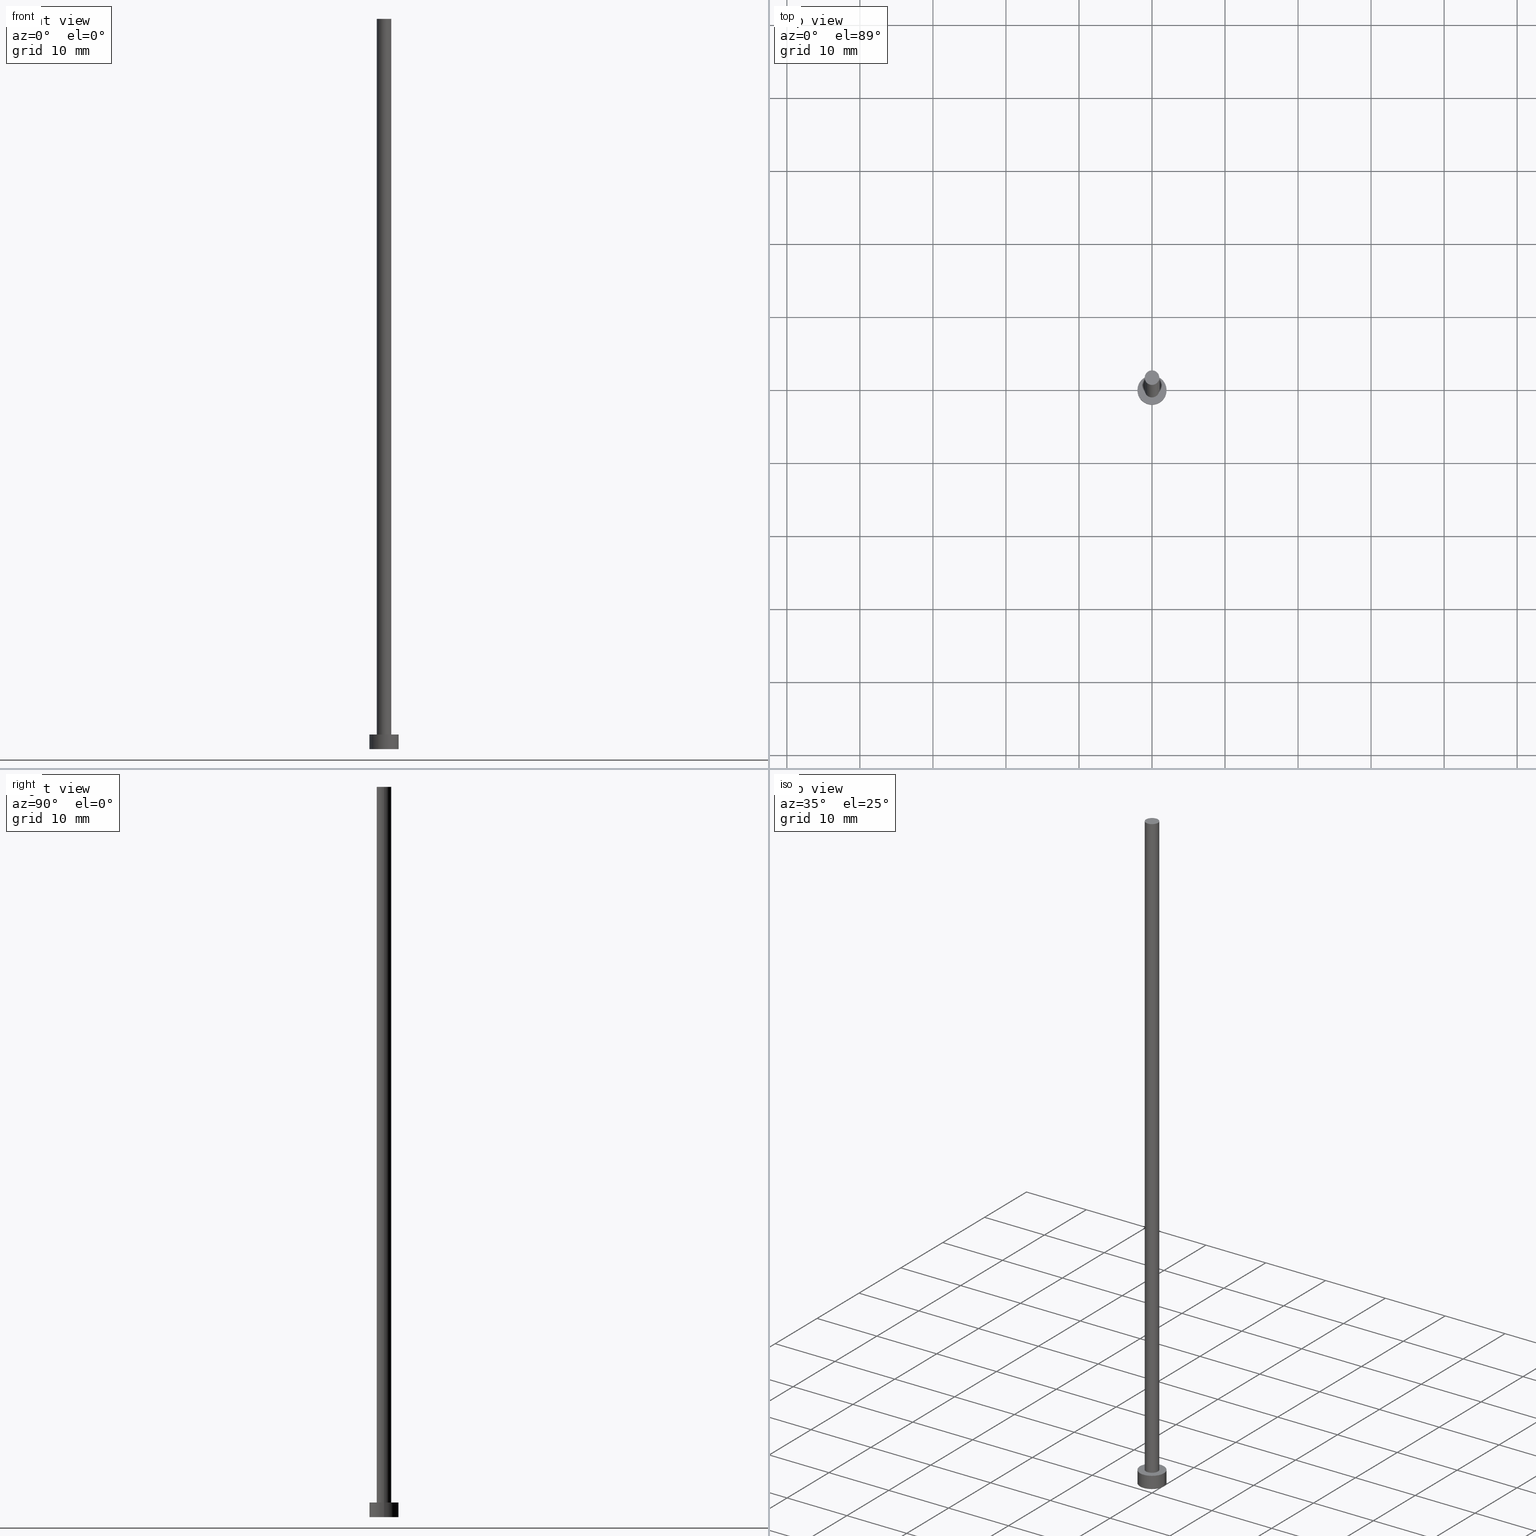
[diagram: canonical four-view strip — front | top / right | iso, engineering-drawing reading convention]
A machine part, canonical four-view strip (front | top / right | iso — engineering-drawing reading convention). The complete STEP part file that produces these views, byte-faithful:
ISO-10303-21;
HEADER;
FILE_DESCRIPTION (( 'STEP AP203' ),
    '1' );
FILE_NAME ('e36b.STEP',
    '2023-02-13T14:56:16',
    ( '' ),
    ( '' ),
    'SwSTEP 2.0',
    'SolidWorks 2019',
    '' );
FILE_SCHEMA (( 'CONFIG_CONTROL_DESIGN' ));
ENDSEC;

DATA;
#1 = COORDINATED_UNIVERSAL_TIME_OFFSET ( 1, 0, .AHEAD. ) ;
#2 = AXIS2_PLACEMENT_3D ( 'NONE', #114, #188, #10 ) ;
#3 = VECTOR ( 'NONE', #117, 1000.000000000000000 ) ;
#4 = EDGE_CURVE ( 'NONE', #66, #193, #75, .T. ) ;
#5 = EDGE_CURVE ( 'NONE', #150, #34, #24, .T. ) ;
#6 = CYLINDRICAL_SURFACE ( 'NONE', #13, 1.000000000000000000 ) ;
#7 = PERSON ( 'NEUR�EN�', 'NEUR�EN�', 'NEUR�EN�', ('NEUR�EN�'), ('NEUR�EN�'), ('NEUR�EN�') ) ;
#8 = ORIENTED_EDGE ( 'NONE', *, *, #248, .T. ) ;
#9 = PERSON_AND_ORGANIZATION ( #7, #104 ) ;
#10 = DIRECTION ( 'NONE',  ( 1.000000000000000000, 0.000000000000000000, 0.000000000000000000 ) ) ;
#11 = ORIENTED_EDGE ( 'NONE', *, *, #214, .F. ) ;
#12 = FACE_BOUND ( 'NONE', #62, .T. ) ;
#13 = AXIS2_PLACEMENT_3D ( 'NONE', #86, #242, #33 ) ;
#14 = EDGE_LOOP ( 'NONE', ( #244, #8 ) ) ;
#15 = CARTESIAN_POINT ( 'NONE',  ( 0.000000000000000000, 0.000000000000000000, 2.000000000000000000 ) ) ;
#16 = FACE_OUTER_BOUND ( 'NONE', #132, .T. ) ;
#17 = ORIENTED_EDGE ( 'NONE', *, *, #105, .T. ) ;
#18 = FACE_OUTER_BOUND ( 'NONE', #81, .T. ) ;
#19 = CALENDAR_DATE ( 2023, 13, 2 ) ;
#20 = PLANE ( 'NONE',  #61 ) ;
#21 = PERSON_AND_ORGANIZATION ( #7, #104 ) ;
#22 = DIRECTION ( 'NONE',  ( 0.000000000000000000, 0.000000000000000000, 1.000000000000000000 ) ) ;
#23 = ADVANCED_FACE ( 'NONE', ( #65 ), #6, .T. ) ;
#24 = CIRCLE ( 'NONE', #221, 2.000000000000000000 ) ;
#25 = LOCAL_TIME ( 15, 56, 16.00000000000000000, #32 ) ;
#26 = PRODUCT_DEFINITION_SHAPE ( 'NONE', 'NONE',  #89 ) ;
#27 = EDGE_CURVE ( 'NONE', #144, #118, #218, .T. ) ;
#28 = VECTOR ( 'NONE', #168, 1000.000000000000000 ) ;
#29 = ORIENTED_EDGE ( 'NONE', *, *, #243, .T. ) ;
#30 = CIRCLE ( 'NONE', #179, 2.000000000000000000 ) ;
#31 = ORIENTED_EDGE ( 'NONE', *, *, #224, .T. ) ;
#32 = COORDINATED_UNIVERSAL_TIME_OFFSET ( 1, 0, .AHEAD. ) ;
#33 = DIRECTION ( 'NONE',  ( -1.000000000000000000, 0.000000000000000000, 0.000000000000000000 ) ) ;
#34 = VERTEX_POINT ( 'NONE', #63 ) ;
#35 = CARTESIAN_POINT ( 'NONE',  ( 0.000000000000000000, 0.000000000000000000, 0.000000000000000000 ) ) ;
#36 = MECHANICAL_CONTEXT ( 'NONE', #46, 'mechanical' ) ;
#37 = FACE_OUTER_BOUND ( 'NONE', #165, .T. ) ;
#38 = CARTESIAN_POINT ( 'NONE',  ( 2.000000000000000000, 2.449293598294706414E-16, 0.000000000000000000 ) ) ;
#39 = SECURITY_CLASSIFICATION_LEVEL ( 'unclassified' ) ;
#40 = DIRECTION ( 'NONE',  ( -0.000000000000000000, -0.000000000000000000, -1.000000000000000000 ) ) ;
#41 = PERSON_AND_ORGANIZATION ( #7, #104 ) ;
#42 = PERSON_AND_ORGANIZATION_ROLE ( 'design_supplier' ) ;
#43 = EDGE_LOOP ( 'NONE', ( #236, #213, #250, #134 ) ) ;
#44 = CC_DESIGN_SECURITY_CLASSIFICATION ( #157, ( #121 ) ) ;
#45 = CC_DESIGN_PERSON_AND_ORGANIZATION_ASSIGNMENT ( #41, #42, ( #121 ) ) ;
#46 = APPLICATION_CONTEXT ( 'configuration controlled 3d designs of mechanical parts and assemblies' ) ;
#47 = ORIENTED_EDGE ( 'NONE', *, *, #243, .F. ) ;
#48 = DIRECTION ( 'NONE',  ( 0.000000000000000000, 0.000000000000000000, 1.000000000000000000 ) ) ;
#49 = CC_DESIGN_APPROVAL ( #197, ( #157 ) ) ;
#50 = ORIENTED_EDGE ( 'NONE', *, *, #105, .F. ) ;
#51 = DIRECTION ( 'NONE',  ( -1.000000000000000000, 0.000000000000000000, 0.000000000000000000 ) ) ;
#52 =( NAMED_UNIT ( * ) PLANE_ANGLE_UNIT ( ) SI_UNIT ( $, .RADIAN. ) );
#53 = CARTESIAN_POINT ( 'NONE',  ( 0.000000000000000000, 0.000000000000000000, 100.0000000000000000 ) ) ;
#54 = DIRECTION ( 'NONE',  ( 1.000000000000000000, 0.000000000000000000, -0.000000000000000000 ) ) ;
#55 = ADVANCED_FACE ( 'NONE', ( #149 ), #127, .T. ) ;
#56 = APPLICATION_PROTOCOL_DEFINITION ( 'international standard', 'config_control_design', 1994, #46 ) ;
#57 = CARTESIAN_POINT ( 'NONE',  ( 2.000000000000000000, 2.449293598294706414E-16, 2.000000000000000000 ) ) ;
#58 = APPROVAL_DATE_TIME ( #183, #166 ) ;
#59 = ORIENTED_EDGE ( 'NONE', *, *, #173, .F. ) ;
#60 = APPROVAL_DATE_TIME ( #123, #197 ) ;
#61 = AXIS2_PLACEMENT_3D ( 'NONE', #232, #138, #235 ) ;
#62 = EDGE_LOOP ( 'NONE', ( #131, #47 ) ) ;
#63 = CARTESIAN_POINT ( 'NONE',  ( 2.000000000000000000, 2.449293598294706414E-16, 2.000000000000000000 ) ) ;
#64 = CIRCLE ( 'NONE', #241, 2.000000000000000000 ) ;
#65 = FACE_OUTER_BOUND ( 'NONE', #90, .T. ) ;
#66 = VERTEX_POINT ( 'NONE', #156 ) ;
#67 = DIRECTION ( 'NONE',  ( 0.000000000000000000, 0.000000000000000000, 1.000000000000000000 ) ) ;
#68 = AXIS2_PLACEMENT_3D ( 'NONE', #253, #135, #152 ) ;
#69 = CLOSED_SHELL ( 'NONE', ( #23, #55, #204, #82, #106, #158, #233 ) ) ;
#70 = ORIENTED_EDGE ( 'NONE', *, *, #145, .F. ) ;
#71 = CARTESIAN_POINT ( 'NONE',  ( 0.000000000000000000, 0.000000000000000000, 2.000000000000000000 ) ) ;
#72 =( LENGTH_UNIT ( ) NAMED_UNIT ( * ) SI_UNIT ( .MILLI., .METRE. ) );
#73 = DIRECTION ( 'NONE',  ( 0.000000000000000000, 0.000000000000000000, 1.000000000000000000 ) ) ;
#74 = CARTESIAN_POINT ( 'NONE',  ( 1.000000000000000000, 1.224646799147353207E-16, 100.0000000000000000 ) ) ;
#75 = CIRCLE ( 'NONE', #225, 1.000000000000000000 ) ;
#76 = ORIENTED_EDGE ( 'NONE', *, *, #224, .F. ) ;
#77 = APPROVAL_STATUS ( 'not_yet_approved' ) ;
#78 = CARTESIAN_POINT ( 'NONE',  ( -2.000000000000000000, 0.000000000000000000, 2.000000000000000000 ) ) ;
#79 = CC_DESIGN_PERSON_AND_ORGANIZATION_ASSIGNMENT ( #199, #215, ( #121 ) ) ;
#80 = COORDINATED_UNIVERSAL_TIME_OFFSET ( 1, 0, .AHEAD. ) ;
#81 = EDGE_LOOP ( 'NONE', ( #11, #88, #31, #167 ) ) ;
#82 = ADVANCED_FACE ( 'NONE', ( #12, #124 ), #178, .T. ) ;
#83 = CALENDAR_DATE ( 2023, 13, 2 ) ;
#84 = DIRECTION ( 'NONE',  ( 0.000000000000000000, 0.000000000000000000, 1.000000000000000000 ) ) ;
#85 = UNCERTAINTY_MEASURE_WITH_UNIT (LENGTH_MEASURE( 1.000000000000000082E-05 ), #72, 'distance_accuracy_value', 'NONE');
#86 = CARTESIAN_POINT ( 'NONE',  ( 0.000000000000000000, 0.000000000000000000, 100.0000000000000000 ) ) ;
#87 = LOCAL_TIME ( 15, 56, 16.00000000000000000, #125 ) ;
#88 = ORIENTED_EDGE ( 'NONE', *, *, #96, .F. ) ;
#89 = PRODUCT_DEFINITION ( 'NEZN�M�', '', #121, #220 ) ;
#90 = EDGE_LOOP ( 'NONE', ( #70, #227, #29, #76 ) ) ;
#91 = CARTESIAN_POINT ( 'NONE',  ( 0.000000000000000000, 0.000000000000000000, 0.000000000000000000 ) ) ;
#92 = AXIS2_PLACEMENT_3D ( 'NONE', #15, #67, #141 ) ;
#93 = ORIENTED_EDGE ( 'NONE', *, *, #96, .T. ) ;
#94 = AXIS2_PLACEMENT_3D ( 'NONE', #245, #22, #163 ) ;
#95 = DIRECTION ( 'NONE',  ( -0.000000000000000000, -0.000000000000000000, -1.000000000000000000 ) ) ;
#96 = EDGE_CURVE ( 'NONE', #191, #169, #252, .T. ) ;
#97 = CARTESIAN_POINT ( 'NONE',  ( -2.000000000000000000, 0.000000000000000000, 2.000000000000000000 ) ) ;
#98 = APPLICATION_PROTOCOL_DEFINITION ( 'international standard', 'config_control_design', 1994, #136 ) ;
#99 = LINE ( 'NONE', #78, #247 ) ;
#100 = VECTOR ( 'NONE', #95, 1000.000000000000000 ) ;
#101 = APPROVAL_ROLE ( '' ) ;
#102 = CALENDAR_DATE ( 2023, 13, 2 ) ;
#103 = DATE_AND_TIME ( #19, #226 ) ;
#104 = ORGANIZATION ( 'NEUR�EN�', 'NEUR�EN�', '' ) ;
#105 = EDGE_CURVE ( 'NONE', #118, #144, #30, .T. ) ;
#106 = ADVANCED_FACE ( 'NONE', ( #37 ), #249, .F. ) ;
#107 = PRODUCT ( 'e36b', 'e36b', '', ( #36 ) ) ;
#108 = CIRCLE ( 'NONE', #147, 1.000000000000000000 ) ;
#109 = AXIS2_PLACEMENT_3D ( 'NONE', #53, #153, #51 ) ;
#110 = ORIENTED_EDGE ( 'NONE', *, *, #145, .T. ) ;
#111 = ADVANCED_BREP_SHAPE_REPRESENTATION ( 'e36b', ( #251, #161 ), #130 ) ;
#112 = ORIENTED_EDGE ( 'NONE', *, *, #129, .T. ) ;
#113 = CALENDAR_DATE ( 2023, 13, 2 ) ;
#114 = CARTESIAN_POINT ( 'NONE',  ( 0.000000000000000000, 0.000000000000000000, 0.000000000000000000 ) ) ;
#115 = DIRECTION ( 'NONE',  ( 1.000000000000000000, 0.000000000000000000, 0.000000000000000000 ) ) ;
#116 = DIRECTION ( 'NONE',  ( -0.000000000000000000, -0.000000000000000000, -1.000000000000000000 ) ) ;
#117 = DIRECTION ( 'NONE',  ( -0.000000000000000000, -0.000000000000000000, -1.000000000000000000 ) ) ;
#118 = VERTEX_POINT ( 'NONE', #38 ) ;
#119 =( NAMED_UNIT ( * ) SI_UNIT ( $, .STERADIAN. ) SOLID_ANGLE_UNIT ( ) );
#120 = DIRECTION ( 'NONE',  ( 0.000000000000000000, 0.000000000000000000, 1.000000000000000000 ) ) ;
#121 = PRODUCT_DEFINITION_FORMATION_WITH_SPECIFIED_SOURCE ( 'LIBOVOLN�', '', #107, .NOT_KNOWN. ) ;
#122 = PERSON_AND_ORGANIZATION ( #7, #104 ) ;
#123 = DATE_AND_TIME ( #83, #254 ) ;
#124 = FACE_OUTER_BOUND ( 'NONE', #14, .T. ) ;
#125 = COORDINATED_UNIVERSAL_TIME_OFFSET ( 1, 0, .AHEAD. ) ;
#126 = PERSON_AND_ORGANIZATION_ROLE ( 'classification_officer' ) ;
#127 = CYLINDRICAL_SURFACE ( 'NONE', #234, 2.000000000000000000 ) ;
#128 = CC_DESIGN_DATE_AND_TIME_ASSIGNMENT ( #103, #219, ( #89 ) ) ;
#129 = EDGE_CURVE ( 'NONE', #34, #118, #212, .T. ) ;
#130 =( GEOMETRIC_REPRESENTATION_CONTEXT ( 3 ) GLOBAL_UNCERTAINTY_ASSIGNED_CONTEXT ( ( #85 ) ) GLOBAL_UNIT_ASSIGNED_CONTEXT ( ( #72, #52, #119 ) ) REPRESENTATION_CONTEXT ( 'NONE', 'WORKASPACE' ) );
#131 = ORIENTED_EDGE ( 'NONE', *, *, #4, .F. ) ;
#132 = EDGE_LOOP ( 'NONE', ( #93, #110 ) ) ;
#133 = DIRECTION ( 'NONE',  ( 0.000000000000000000, 0.000000000000000000, 1.000000000000000000 ) ) ;
#134 = ORIENTED_EDGE ( 'NONE', *, *, #27, .T. ) ;
#135 = DIRECTION ( 'NONE',  ( 0.000000000000000000, 0.000000000000000000, 1.000000000000000000 ) ) ;
#136 = APPLICATION_CONTEXT ( 'configuration controlled 3d designs of mechanical parts and assemblies' ) ;
#137 = LINE ( 'NONE', #192, #28 ) ;
#138 = DIRECTION ( 'NONE',  ( 0.000000000000000000, 0.000000000000000000, 1.000000000000000000 ) ) ;
#139 = CC_DESIGN_DATE_AND_TIME_ASSIGNMENT ( #255, #182, ( #157 ) ) ;
#140 = DIRECTION ( 'NONE',  ( 1.000000000000000000, 0.000000000000000000, 0.000000000000000000 ) ) ;
#141 = DIRECTION ( 'NONE',  ( 1.000000000000000000, 0.000000000000000000, -0.000000000000000000 ) ) ;
#142 = LOCAL_TIME ( 15, 56, 16.00000000000000000, #80 ) ;
#143 = FACE_OUTER_BOUND ( 'NONE', #43, .T. ) ;
#144 = VERTEX_POINT ( 'NONE', #171 ) ;
#145 = EDGE_CURVE ( 'NONE', #169, #191, #108, .T. ) ;
#146 = APPROVAL_DATE_TIME ( #187, #206 ) ;
#147 = AXIS2_PLACEMENT_3D ( 'NONE', #175, #48, #195 ) ;
#148 = PERSON_AND_ORGANIZATION ( #7, #104 ) ;
#149 = FACE_OUTER_BOUND ( 'NONE', #229, .T. ) ;
#150 = VERTEX_POINT ( 'NONE', #97 ) ;
#151 = PRODUCT_RELATED_PRODUCT_CATEGORY ( 'detail', '', ( #107 ) ) ;
#152 = DIRECTION ( 'NONE',  ( 1.000000000000000000, 0.000000000000000000, 0.000000000000000000 ) ) ;
#153 = DIRECTION ( 'NONE',  ( -0.000000000000000000, -0.000000000000000000, -1.000000000000000000 ) ) ;
#154 = DIRECTION ( 'NONE',  ( -1.000000000000000000, 0.000000000000000000, 0.000000000000000000 ) ) ;
#155 = APPROVAL_ROLE ( '' ) ;
#156 = CARTESIAN_POINT ( 'NONE',  ( -1.000000000000000000, 0.000000000000000000, 2.000000000000000000 ) ) ;
#157 = SECURITY_CLASSIFICATION ( '', '', #39 ) ;
#158 = ADVANCED_FACE ( 'NONE', ( #18 ), #177, .T. ) ;
#159 = PERSON_AND_ORGANIZATION_ROLE ( 'creator' ) ;
#160 = PERSON_AND_ORGANIZATION ( #7, #104 ) ;
#161 = AXIS2_PLACEMENT_3D ( 'NONE', #211, #170, #140 ) ;
#162 = DIRECTION ( 'NONE',  ( 1.000000000000000000, 0.000000000000000000, 0.000000000000000000 ) ) ;
#163 = DIRECTION ( 'NONE',  ( 1.000000000000000000, 0.000000000000000000, 0.000000000000000000 ) ) ;
#164 = DIRECTION ( 'NONE',  ( 0.000000000000000000, 0.000000000000000000, 1.000000000000000000 ) ) ;
#165 = EDGE_LOOP ( 'NONE', ( #172, #50 ) ) ;
#166 = APPROVAL ( #196, 'NEUR�EN�' ) ;
#167 = ORIENTED_EDGE ( 'NONE', *, *, #4, .T. ) ;
#168 = DIRECTION ( 'NONE',  ( -0.000000000000000000, -0.000000000000000000, -1.000000000000000000 ) ) ;
#169 = VERTEX_POINT ( 'NONE', #74 ) ;
#170 = DIRECTION ( 'NONE',  ( 0.000000000000000000, 0.000000000000000000, 1.000000000000000000 ) ) ;
#171 = CARTESIAN_POINT ( 'NONE',  ( -2.000000000000000000, 0.000000000000000000, 0.000000000000000000 ) ) ;
#172 = ORIENTED_EDGE ( 'NONE', *, *, #27, .F. ) ;
#173 = EDGE_CURVE ( 'NONE', #150, #144, #99, .T. ) ;
#174 = AXIS2_PLACEMENT_3D ( 'NONE', #71, #40, #154 ) ;
#175 = CARTESIAN_POINT ( 'NONE',  ( 0.000000000000000000, 0.000000000000000000, 100.0000000000000000 ) ) ;
#176 = ORIENTED_EDGE ( 'NONE', *, *, #248, .F. ) ;
#177 = CYLINDRICAL_SURFACE ( 'NONE', #109, 1.000000000000000000 ) ;
#178 = PLANE ( 'NONE',  #92 ) ;
#179 = AXIS2_PLACEMENT_3D ( 'NONE', #35, #73, #190 ) ;
#180 = PERSON_AND_ORGANIZATION ( #7, #104 ) ;
#181 = APPROVAL_PERSON_ORGANIZATION ( #160, #197, #240 ) ;
#182 = DATE_TIME_ROLE ( 'classification_date' ) ;
#183 = DATE_AND_TIME ( #239, #142 ) ;
#184 = CC_DESIGN_PERSON_AND_ORGANIZATION_ASSIGNMENT ( #148, #159, ( #89 ) ) ;
#185 = CC_DESIGN_APPROVAL ( #206, ( #89 ) ) ;
#186 = CARTESIAN_POINT ( 'NONE',  ( 0.000000000000000000, 0.000000000000000000, 2.000000000000000000 ) ) ;
#187 = DATE_AND_TIME ( #113, #25 ) ;
#188 = DIRECTION ( 'NONE',  ( 0.000000000000000000, 0.000000000000000000, 1.000000000000000000 ) ) ;
#189 = SHAPE_DEFINITION_REPRESENTATION ( #26, #111 ) ;
#190 = DIRECTION ( 'NONE',  ( 1.000000000000000000, 0.000000000000000000, 0.000000000000000000 ) ) ;
#191 = VERTEX_POINT ( 'NONE', #237 ) ;
#192 = CARTESIAN_POINT ( 'NONE',  ( 1.000000000000000000, 1.224646799147353207E-16, 100.0000000000000000 ) ) ;
#193 = VERTEX_POINT ( 'NONE', #231 ) ;
#194 = PERSON_AND_ORGANIZATION_ROLE ( 'design_owner' ) ;
#195 = DIRECTION ( 'NONE',  ( 1.000000000000000000, 0.000000000000000000, 0.000000000000000000 ) ) ;
#196 = APPROVAL_STATUS ( 'not_yet_approved' ) ;
#197 = APPROVAL ( #201, 'NEUR�EN�' ) ;
#198 = CARTESIAN_POINT ( 'NONE',  ( -1.000000000000000000, 0.000000000000000000, 100.0000000000000000 ) ) ;
#199 = PERSON_AND_ORGANIZATION ( #7, #104 ) ;
#200 = APPROVAL_PERSON_ORGANIZATION ( #9, #206, #155 ) ;
#201 = APPROVAL_STATUS ( 'not_yet_approved' ) ;
#202 = CARTESIAN_POINT ( 'NONE',  ( 0.000000000000000000, 0.000000000000000000, 2.000000000000000000 ) ) ;
#203 = CIRCLE ( 'NONE', #94, 1.000000000000000000 ) ;
#204 = ADVANCED_FACE ( 'NONE', ( #143 ), #246, .T. ) ;
#205 = CC_DESIGN_APPROVAL ( #166, ( #121 ) ) ;
#206 = APPROVAL ( #77, 'NEUR�EN�' ) ;
#207 = AXIS2_PLACEMENT_3D ( 'NONE', #91, #120, #54 ) ;
#208 = APPROVAL_PERSON_ORGANIZATION ( #180, #166, #101 ) ;
#209 = CC_DESIGN_PERSON_AND_ORGANIZATION_ASSIGNMENT ( #122, #194, ( #107 ) ) ;
#210 = LINE ( 'NONE', #198, #3 ) ;
#211 = CARTESIAN_POINT ( 'NONE',  ( 0.000000000000000000, 0.000000000000000000, 0.000000000000000000 ) ) ;
#212 = LINE ( 'NONE', #57, #100 ) ;
#213 = ORIENTED_EDGE ( 'NONE', *, *, #5, .F. ) ;
#214 = EDGE_CURVE ( 'NONE', #169, #193, #137, .T. ) ;
#215 = PERSON_AND_ORGANIZATION_ROLE ( 'creator' ) ;
#216 = DIRECTION ( 'NONE',  ( -0.000000000000000000, -0.000000000000000000, -1.000000000000000000 ) ) ;
#217 = COORDINATED_UNIVERSAL_TIME_OFFSET ( 1, 0, .AHEAD. ) ;
#218 = CIRCLE ( 'NONE', #2, 2.000000000000000000 ) ;
#219 = DATE_TIME_ROLE ( 'creation_date' ) ;
#220 = DESIGN_CONTEXT ( 'detailed design', #136, 'design' ) ;
#221 = AXIS2_PLACEMENT_3D ( 'NONE', #228, #133, #222 ) ;
#222 = DIRECTION ( 'NONE',  ( 1.000000000000000000, 0.000000000000000000, 0.000000000000000000 ) ) ;
#223 = CC_DESIGN_PERSON_AND_ORGANIZATION_ASSIGNMENT ( #21, #126, ( #157 ) ) ;
#224 = EDGE_CURVE ( 'NONE', #191, #66, #210, .T. ) ;
#225 = AXIS2_PLACEMENT_3D ( 'NONE', #238, #84, #162 ) ;
#226 = LOCAL_TIME ( 15, 56, 16.00000000000000000, #217 ) ;
#227 = ORIENTED_EDGE ( 'NONE', *, *, #214, .T. ) ;
#228 = CARTESIAN_POINT ( 'NONE',  ( 0.000000000000000000, 0.000000000000000000, 2.000000000000000000 ) ) ;
#229 = EDGE_LOOP ( 'NONE', ( #176, #112, #17, #59 ) ) ;
#230 = DIRECTION ( 'NONE',  ( -1.000000000000000000, 0.000000000000000000, 0.000000000000000000 ) ) ;
#231 = CARTESIAN_POINT ( 'NONE',  ( 1.000000000000000000, 1.224646799147353207E-16, 2.000000000000000000 ) ) ;
#232 = CARTESIAN_POINT ( 'NONE',  ( 0.000000000000000000, 0.000000000000000000, 100.0000000000000000 ) ) ;
#233 = ADVANCED_FACE ( 'NONE', ( #16 ), #20, .T. ) ;
#234 = AXIS2_PLACEMENT_3D ( 'NONE', #202, #116, #230 ) ;
#235 = DIRECTION ( 'NONE',  ( 1.000000000000000000, 0.000000000000000000, -0.000000000000000000 ) ) ;
#236 = ORIENTED_EDGE ( 'NONE', *, *, #129, .F. ) ;
#237 = CARTESIAN_POINT ( 'NONE',  ( -1.000000000000000000, 0.000000000000000000, 100.0000000000000000 ) ) ;
#238 = CARTESIAN_POINT ( 'NONE',  ( 0.000000000000000000, 0.000000000000000000, 2.000000000000000000 ) ) ;
#239 = CALENDAR_DATE ( 2023, 13, 2 ) ;
#240 = APPROVAL_ROLE ( '' ) ;
#241 = AXIS2_PLACEMENT_3D ( 'NONE', #186, #164, #115 ) ;
#242 = DIRECTION ( 'NONE',  ( -0.000000000000000000, -0.000000000000000000, -1.000000000000000000 ) ) ;
#243 = EDGE_CURVE ( 'NONE', #193, #66, #203, .T. ) ;
#244 = ORIENTED_EDGE ( 'NONE', *, *, #5, .T. ) ;
#245 = CARTESIAN_POINT ( 'NONE',  ( 0.000000000000000000, 0.000000000000000000, 2.000000000000000000 ) ) ;
#246 = CYLINDRICAL_SURFACE ( 'NONE', #174, 2.000000000000000000 ) ;
#247 = VECTOR ( 'NONE', #216, 1000.000000000000000 ) ;
#248 = EDGE_CURVE ( 'NONE', #34, #150, #64, .T. ) ;
#249 = PLANE ( 'NONE',  #207 ) ;
#250 = ORIENTED_EDGE ( 'NONE', *, *, #173, .T. ) ;
#251 = MANIFOLD_SOLID_BREP ( 'P�idat vysunut�m3', #69 ) ;
#252 = CIRCLE ( 'NONE', #68, 1.000000000000000000 ) ;
#253 = CARTESIAN_POINT ( 'NONE',  ( 0.000000000000000000, 0.000000000000000000, 100.0000000000000000 ) ) ;
#254 = LOCAL_TIME ( 15, 56, 16.00000000000000000, #1 ) ;
#255 = DATE_AND_TIME ( #102, #87 ) ;
ENDSEC;
END-ISO-10303-21;
